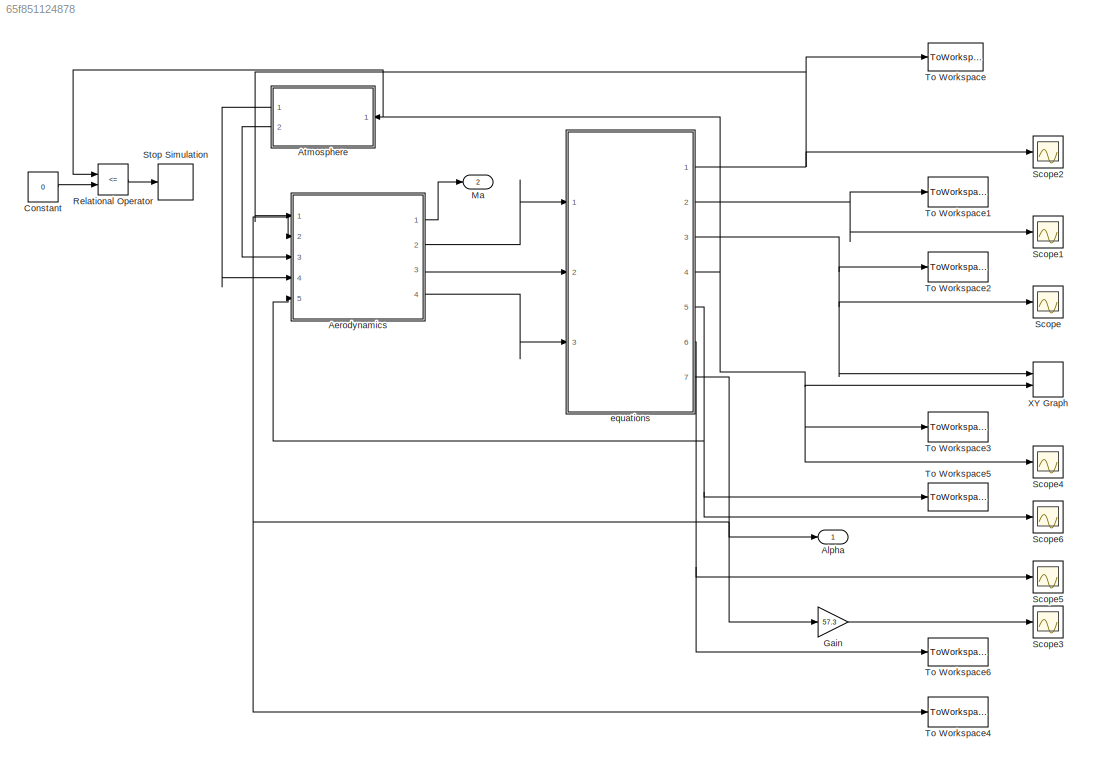
MODEL slx_65f851124878
KIND model
CONFIG AbsTol = auto
CONFIG EnableMultiTasking = off
CONFIG FixedStep = 0.001
CONFIG InitFcn = BeforeSim
CONFIG MaxStep = auto
CONFIG MinStep = auto
CONFIG RelTol = 1e-3
CONFIG SampleTimeConstraint = Unconstrained
CONFIG SolverName = ode4
CONFIG StartTime = 0.0
CONFIG StopTime = 90
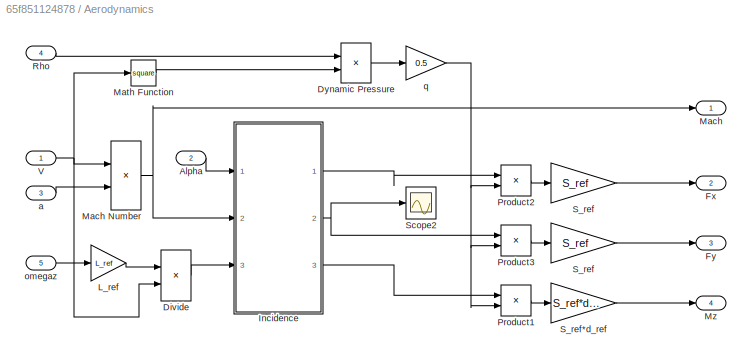
BLOCK [SubSystem] Aerodynamics
  Ports = [5, 4]
  RequestExecContextInheritance = off
BLOCK [Outport] Aerodynamics/ Mach
  InitialOutput = 0
  NameLocation = top
BLOCK [Inport] Aerodynamics/Alpha
  Port = 2
BLOCK [Product] Aerodynamics/Divide
  Inputs = */
  Ports = [2, 1]
BLOCK [Product] Aerodynamics/Dynamic Pressure
  InputSameDT = on
  OutDataTypeStr = Inherit: Same as first input
  Ports = [2, 1]
  SaturateOnIntegerOverflow = on
BLOCK [Outport] Aerodynamics/Fx
  InitialOutput = [0]
  Port = 2
BLOCK [Outport] Aerodynamics/Fy
  InitialOutput = 0
  Port = 3
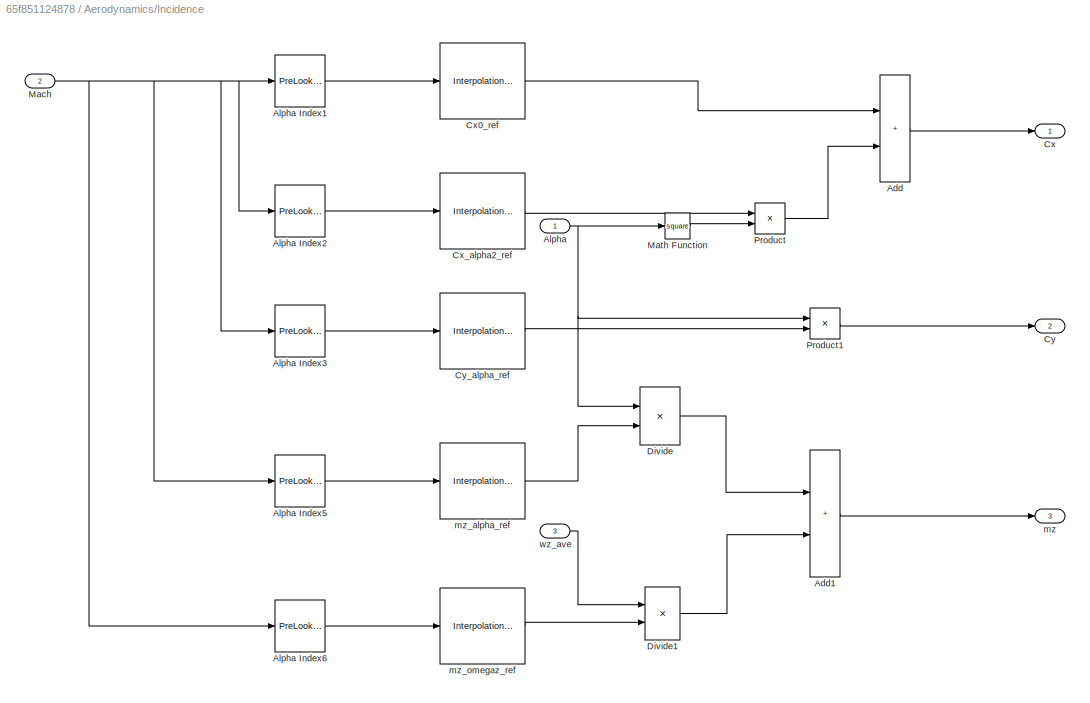
BLOCK [SubSystem] Aerodynamics/Incidence
  Ports = [3, 3]
  RequestExecContextInheritance = off
BLOCK [Sum] Aerodynamics/Incidence/Add
  IconShape = rectangular
  Ports = [2, 1]
BLOCK [Sum] Aerodynamics/Incidence/Add1
  IconShape = rectangular
  Ports = [2, 1]
BLOCK [Inport] Aerodynamics/Incidence/Alpha
BLOCK [Reference] Aerodynamics/Incidence/Alpha Index1  REF=simulink_need_slupdate/PreLookup
Index Search
  Ports = [1, 1]
  SourceBlock = simulink_need_slupdate/PreLookup\nIndex Search
  SourceProductBaseCode = SL
  SourceType = LookupIdxSearch
BLOCK [Reference] Aerodynamics/Incidence/Alpha Index2  REF=simulink_need_slupdate/PreLookup
Index Search
  Ports = [1, 1]
  SourceBlock = simulink_need_slupdate/PreLookup\nIndex Search
  SourceProductBaseCode = SL
  SourceType = LookupIdxSearch
BLOCK [Reference] Aerodynamics/Incidence/Alpha Index3  REF=simulink_need_slupdate/PreLookup
Index Search
  Ports = [1, 1]
  SourceBlock = simulink_need_slupdate/PreLookup\nIndex Search
  SourceProductBaseCode = SL
  SourceType = LookupIdxSearch
BLOCK [Reference] Aerodynamics/Incidence/Alpha Index5  REF=simulink_need_slupdate/PreLookup
Index Search
  Ports = [1, 1]
  SourceBlock = simulink_need_slupdate/PreLookup\nIndex Search
  SourceProductBaseCode = SL
  SourceType = LookupIdxSearch
BLOCK [Reference] Aerodynamics/Incidence/Alpha Index6  REF=simulink_need_slupdate/PreLookup
Index Search
  Ports = [1, 1]
  SourceBlock = simulink_need_slupdate/PreLookup\nIndex Search
  SourceProductBaseCode = SL
  SourceType = LookupIdxSearch
BLOCK [Outport] Aerodynamics/Incidence/Cx
  InitialOutput = 0
BLOCK [Reference] Aerodynamics/Incidence/Cx0_ref  REF=simulink_need_slupdate/Interpolation (n-D)
using PreLookup
  Ports = [1, 1]
  SourceBlock = simulink_need_slupdate/Interpolation (n-D)\nusing PreLookup
  SourceProductBaseCode = SL
  SourceType = LookupNDInterpIdx
BLOCK [Reference] Aerodynamics/Incidence/Cx_alpha2_ref  REF=simulink_need_slupdate/Interpolation (n-D)
using PreLookup
  Ports = [1, 1]
  SourceBlock = simulink_need_slupdate/Interpolation (n-D)\nusing PreLookup
  SourceProductBaseCode = SL
  SourceType = LookupNDInterpIdx
BLOCK [Outport] Aerodynamics/Incidence/Cy
  InitialOutput = 0
  Port = 2
BLOCK [Reference] Aerodynamics/Incidence/Cy_alpha_ref  REF=simulink_need_slupdate/Interpolation (n-D)
using PreLookup
  Ports = [1, 1]
  SourceBlock = simulink_need_slupdate/Interpolation (n-D)\nusing PreLookup
  SourceProductBaseCode = SL
  SourceType = LookupNDInterpIdx
BLOCK [Product] Aerodynamics/Incidence/Divide
  Ports = [2, 1]
BLOCK [Product] Aerodynamics/Incidence/Divide1
  Ports = [2, 1]
BLOCK [Inport] Aerodynamics/Incidence/Mach
  Port = 2
BLOCK [Math] Aerodynamics/Incidence/Math Function
  Operator = square
  Ports = [1, 1]
  SignedPower = on
BLOCK [Product] Aerodynamics/Incidence/Product
  Ports = [2, 1]
BLOCK [Product] Aerodynamics/Incidence/Product1
  Ports = [2, 1]
BLOCK [Outport] Aerodynamics/Incidence/mz
  Port = 3
BLOCK [Reference] Aerodynamics/Incidence/mz_alpha_ref  REF=simulink_need_slupdate/Interpolation (n-D)
using PreLookup
  Ports = [1, 1]
  SourceBlock = simulink_need_slupdate/Interpolation (n-D)\nusing PreLookup
  SourceProductBaseCode = SL
  SourceType = LookupNDInterpIdx
BLOCK [Reference] Aerodynamics/Incidence/mz_omegaz_ref  REF=simulink_need_slupdate/Interpolation (n-D)
using PreLookup
  Ports = [1, 1]
  SourceBlock = simulink_need_slupdate/Interpolation (n-D)\nusing PreLookup
  SourceProductBaseCode = SL
  SourceType = LookupNDInterpIdx
BLOCK [Inport] Aerodynamics/Incidence/wz_ave
  Port = 3
BLOCK [Gain] Aerodynamics/L_ref
  Gain = L_ref
  OutDataTypeStr = Inherit: Same as input
  ParamDataTypeStr = Inherit: Same as input
  SaturateOnIntegerOverflow = on
BLOCK [Product] Aerodynamics/Mach Number
  InputSameDT = on
  Inputs = */
  OutDataTypeStr = Inherit: Same as first input
  Ports = [2, 1]
  SaturateOnIntegerOverflow = on
BLOCK [Math] Aerodynamics/Math Function
  Operator = square
  Ports = [1, 1]
  SignedPower = on
BLOCK [Outport] Aerodynamics/Mz
  Port = 4
BLOCK [Product] Aerodynamics/Product1
  InputSameDT = on
  OutDataTypeStr = Inherit: Same as first input
  Ports = [2, 1]
  SaturateOnIntegerOverflow = on
BLOCK [Product] Aerodynamics/Product2
  InputSameDT = on
  OutDataTypeStr = Inherit: Same as first input
  Ports = [2, 1]
  SaturateOnIntegerOverflow = on
BLOCK [Product] Aerodynamics/Product3
  InputSameDT = on
  OutDataTypeStr = Inherit: Same as first input
  Ports = [2, 1]
  SaturateOnIntegerOverflow = on
BLOCK [Inport] Aerodynamics/Rho
  Port = 4
BLOCK [Gain] Aerodynamics/S_ref
  Gain = S_ref
  OutDataTypeStr = Inherit: Same as input
  ParamDataTypeStr = Inherit: Same as input
  SaturateOnIntegerOverflow = on
BLOCK [Gain] Aerodynamics/S_ref 
  Gain = S_ref
  OutDataTypeStr = Inherit: Same as input
  ParamDataTypeStr = Inherit: Same as input
  SaturateOnIntegerOverflow = on
BLOCK [Gain] Aerodynamics/S_ref*d_ref
  Gain = S_ref*d_ref
  OutDataTypeStr = Inherit: Same as input
  ParamDataTypeStr = Inherit: Same as input
  SaturateOnIntegerOverflow = on
BLOCK [Scope] Aerodynamics/Scope2
  Floating = off
  NumInputPorts = 1
  Ports = [1]
  ScopeSpecificationString = C++SS(StrPVP('Open','off'),StrPVP('TimeRange','auto'),StrPVP('TickLabels','OneTimeTick'),StrPVP('ShowLegends','off'),StrPVP('LimitDataPoints','off'),StrPVP('MaxDataPoints','5000'),StrPVP('SaveToWorkspace','off'),StrPVP('SaveName','ScopeData2'),StrPVP('YMin','-1.62944'),StrPVP('YMax','4.48792'),StrPVP('BlockParamSampleInput','off'),StrPVP('BlockParamSampleTime','-1'),StrPVP('ZoomMode','on'),StrPVP(...<+632ch>
BLOCK [Inport] Aerodynamics/V
BLOCK [Inport] Aerodynamics/a
  Port = 3
BLOCK [Inport] Aerodynamics/omegaz
  Port = 5
BLOCK [Gain] Aerodynamics/q
  Gain = 0.5
  OutDataTypeStr = Inherit: Same as input
  ParamDataTypeStr = Inherit: Same as input
  SaturateOnIntegerOverflow = on
BLOCK [Outport] Alpha
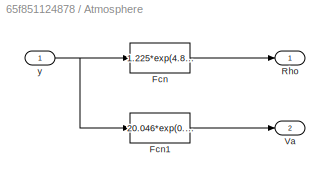
BLOCK [SubSystem] Atmosphere
  Ports = [1, 2]
  RequestExecContextInheritance = off
BLOCK [Fcn] Atmosphere/Fcn
  Expr = 1.225*exp(4.83*log(1.0-2.0323e-5*u(1)))
BLOCK [Fcn] Atmosphere/Fcn1
  Expr = 20.046*exp(0.5*log(288.34-5.86e-3*u(1)))
BLOCK [Outport] Atmosphere/Rho
BLOCK [Outport] Atmosphere/Va
  Port = 2
BLOCK [Inport] Atmosphere/y
BLOCK [Constant] Constant
  Value = 0
BLOCK [Gain] Gain
  Gain = 57.3
BLOCK [Outport] Ma
  Port = 2
BLOCK [RelationalOperator] Relational Operator
  InputSameDT = off
  Operator = <=
  OutDataTypeStr = boolean
  Ports = [2, 1]
  RndMeth = Simplest
BLOCK [Scope] Scope
  Floating = off
  NumInputPorts = 1
  Ports = [1]
  ScopeSpecificationString = Simulink.scopes.TimeScopeBlockCfg('CurrentConfiguration', extmgr.ConfigurationSet(extmgr.Configuration('Core','General UI',true),extmgr.Configuration('Core','Source UI',true),extmgr.Configuration('Sources','WiredSimulink',true,'DataLoggingVariableName','ScopeData1'),extmgr.Configuration('Visuals','Time Domain',true,'SerializedDisplays',{struct('MinYLimReal','-609.05232','MaxYLimReal','5481.47092',...<+1377ch>
BLOCK [Scope] Scope1
  Floating = off
  NumInputPorts = 1
  Ports = [1]
  ScopeSpecificationString = Simulink.scopes.TimeScopeBlockCfg('CurrentConfiguration', extmgr.ConfigurationSet(extmgr.Configuration('Core','General UI',true),extmgr.Configuration('Core','Source UI',true),extmgr.Configuration('Sources','WiredSimulink',true,'DataLoggingVariableName','ScopeData2'),extmgr.Configuration('Visuals','Time Domain',true,'SerializedDisplays',{struct('MinYLimReal','-1.00535','MaxYLimReal','0.11171','YLab...<+1359ch>
BLOCK [Scope] Scope2
  Floating = off
  NumInputPorts = 1
  Ports = [1]
  ScopeSpecificationString = Simulink.scopes.TimeScopeBlockCfg('CurrentConfiguration', extmgr.ConfigurationSet(extmgr.Configuration('Core','General UI',true),extmgr.Configuration('Core','Source UI',true),extmgr.Configuration('Sources','WiredSimulink',true,'DataLoggingVariableName','ScopeData3'),extmgr.Configuration('Visuals','Time Domain',true,'SerializedDisplays',{struct('MinYLimReal','124.70604','MaxYLimReal','597.25488','Y...<+1384ch>
BLOCK [Scope] Scope3
  Floating = off
  NumInputPorts = 1
  Ports = [1]
  ScopeSpecificationString = Simulink.scopes.TimeScopeBlockCfg('CurrentConfiguration', extmgr.ConfigurationSet(extmgr.Configuration('Core','General UI',true,'FigureColor',[0.156862745098039 0.156862745098039 0.156862745098039]),extmgr.Configuration('Core','Source UI',true),extmgr.Configuration('Sources','WiredSimulink',true,'DataLoggingVariableName','ScopeData4','DataLoggingSaveFormat','StructureWithTime','DataLoggingDecimati...<+2755ch>
BLOCK [Scope] Scope4
  Floating = off
  NumInputPorts = 1
  Ports = [1]
  ScopeSpecificationString = Simulink.scopes.TimeScopeBlockCfg('CurrentConfiguration', extmgr.ConfigurationSet(extmgr.Configuration('Core','General UI',true,'FigureColor',[0.156862745098039 0.156862745098039 0.156862745098039]),extmgr.Configuration('Core','Source UI',true),extmgr.Configuration('Sources','WiredSimulink',true,'DataLoggingVariableName','ScopeData5','DataLoggingSaveFormat','StructureWithTime','DataLoggingDecimati...<+2823ch>
BLOCK [Scope] Scope5
  Floating = off
  NumInputPorts = 1
  Ports = [1]
  ScopeSpecificationString = Simulink.scopes.TimeScopeBlockCfg('CurrentConfiguration', extmgr.ConfigurationSet(extmgr.Configuration('Core','General UI',true),extmgr.Configuration('Core','Source UI',true),extmgr.Configuration('Sources','WiredSimulink',true,'DataLoggingVariableName','ScopeData1'),extmgr.Configuration('Visuals','Time Domain',true,'SerializedDisplays',{struct('MinYLimReal','-1.30194','MaxYLimReal','1.11429','YLab...<+1370ch>
BLOCK [Scope] Scope6
  Floating = off
  NumInputPorts = 1
  Ports = [1]
  ScopeSpecificationString = Simulink.scopes.TimeScopeBlockCfg('CurrentConfiguration', extmgr.ConfigurationSet(extmgr.Configuration('Core','General UI',true),extmgr.Configuration('Core','Source UI',true),extmgr.Configuration('Sources','WiredSimulink',true,'DataLoggingVariableName','ScopeData2'),extmgr.Configuration('Visuals','Time Domain',true),extmgr.Configuration('Tools','Plot Navigation',true),extmgr.Configuration('Tools',...<+40ch>
BLOCK [Stop] Stop Simulation
BLOCK [ToWorkspace] To Workspace
  FixptAsFi = on
  MaxDataPoints = inf
  Ports = [1]
  SampleTime = -1
  SaveFormat = Timeseries
  VariableName = v
BLOCK [ToWorkspace] To Workspace1
  FixptAsFi = on
  MaxDataPoints = inf
  Ports = [1]
  SampleTime = -1
  SaveFormat = Timeseries
  VariableName = theta
BLOCK [ToWorkspace] To Workspace2
  FixptAsFi = on
  MaxDataPoints = inf
  Ports = [1]
  SampleTime = -1
  SaveFormat = Timeseries
  VariableName = x
BLOCK [ToWorkspace] To Workspace3
  FixptAsFi = on
  MaxDataPoints = inf
  Ports = [1]
  SampleTime = -1
  SaveFormat = Timeseries
  VariableName = y
BLOCK [ToWorkspace] To Workspace4
  FixptAsFi = on
  MaxDataPoints = inf
  Ports = [1]
  SampleTime = -1
  SaveFormat = Timeseries
  VariableName = alpha
BLOCK [ToWorkspace] To Workspace5
  FixptAsFi = on
  MaxDataPoints = inf
  Ports = [1]
  SampleTime = -1
  SaveFormat = Timeseries
  VariableName = omegaz
BLOCK [ToWorkspace] To Workspace6
  FixptAsFi = on
  MaxDataPoints = inf
  Ports = [1]
  SampleTime = -1
  SaveFormat = Timeseries
  VariableName = theta_dot
BLOCK [Record] XY Graph
  CompatibilityTag = XY
  FileSettingsInternal = {"entries":[{"content":{"excelSettings":{"content":{},"type":"Streamout.ExcelSettings"}},"type":"Streamout.FileSettingStorage","uuid":"35f0fb69-fa2a-4ecf-9b04-103c80e78a0d"}],"packageUris":["http://schema.mathworks.com/mf0/streamout_blocks/R2020a"],"version":"1.0"}
  Layout = [1 1]
  Ports = [2]
  SignalsInternal = {"entries":[{"content":{"signals":[{"content":{"blockPath":["program_flight/XY Graph"],"channel":[],"dimensions":[1],"domain":"program_flight/XY Graph","lineColor":"#a2142f","plots":[1],"port":1,"sid":[""],"signalID":9873,"signalName":"equations:3"},"type":"RecordBlkView.Signal","uuid":"9f90cb3c-1b18-4322-8165-289bff55505e"},{"content":{"blockPath":["program_flight/XY Graph"],"channel":[],"dimensi...<+395ch>
  VisualizationBindings = {"xyplotplugin":{"info":[{"series":[{"bindingParametersList":[{"parameter":"X-Axis","signalID":9873,"signalName":"equations:3"},{"parameter":"Y-Axis","signalID":9877,"signalName":"equations:4"}],"seriesID":37299}],"subplotID":1}]}}
  st = -1
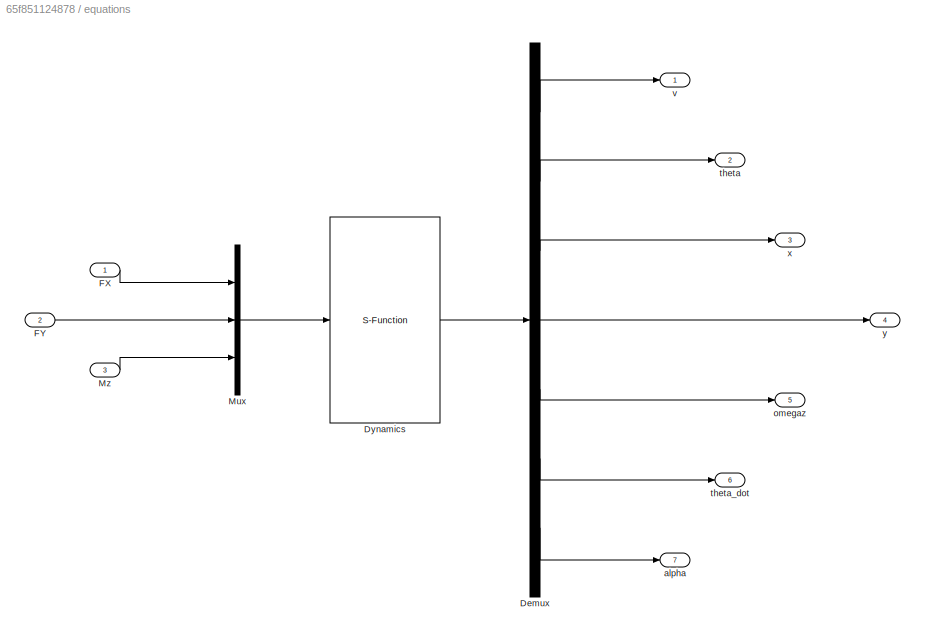
BLOCK [SubSystem] equations
  Ports = [3, 7]
  RequestExecContextInheritance = off
BLOCK [Demux] equations/Demux
  Outputs = 7
  Ports = [1, 7]
BLOCK [S-Function] equations/Dynamics
  EnableBusSupport = off
  FunctionName = ProgramDynamics
  Ports = [1, 1]
  SFcnIsStateOwnerBlock = off
  SFunctionDeploymentMode = off
BLOCK [Inport] equations/FX
BLOCK [Inport] equations/FY
  Port = 2
BLOCK [Mux] equations/Mux
  DisplayOption = bar
  Inputs = 3
  Ports = [3, 1]
BLOCK [Inport] equations/Mz
  Port = 3
BLOCK [Outport] equations/alpha
  Port = 7
BLOCK [Outport] equations/omegaz
  Port = 5
BLOCK [Outport] equations/theta
  Port = 2
BLOCK [Outport] equations/theta_dot
  Port = 6
BLOCK [Outport] equations/v
BLOCK [Outport] equations/x
  Port = 3
BLOCK [Outport] equations/y
  Port = 4
LINE Aerodynamics/Alpha:1 -> Aerodynamics/Incidence:1
LINE Aerodynamics/Divide:1 -> Aerodynamics/Incidence:3
LINE Aerodynamics/Dynamic Pressure:1 -> Aerodynamics/q:1
LINE Aerodynamics/Incidence/Add1:1 -> Aerodynamics/Incidence/mz:1
LINE Aerodynamics/Incidence/Add:1 -> Aerodynamics/Incidence/Cx:1
LINE Aerodynamics/Incidence/Alpha Index1:1 -> Aerodynamics/Incidence/Cx0_ref:1
LINE Aerodynamics/Incidence/Alpha Index2:1 -> Aerodynamics/Incidence/Cx_alpha2_ref:1
LINE Aerodynamics/Incidence/Alpha Index3:1 -> Aerodynamics/Incidence/Cy_alpha_ref:1
LINE Aerodynamics/Incidence/Alpha Index5:1 -> Aerodynamics/Incidence/mz_alpha_ref:1
LINE Aerodynamics/Incidence/Alpha Index6:1 -> Aerodynamics/Incidence/mz_omegaz_ref:1
NET Aerodynamics/Incidence/Alpha:1 -> Aerodynamics/Incidence/Divide:1, Aerodynamics/Incidence/Math Function:1, Aerodynamics/Incidence/Product1:1
LINE Aerodynamics/Incidence/Cx0_ref:1 -> Aerodynamics/Incidence/Add:1
LINE Aerodynamics/Incidence/Cx_alpha2_ref:1 -> Aerodynamics/Incidence/Product:1
LINE Aerodynamics/Incidence/Cy_alpha_ref:1 -> Aerodynamics/Incidence/Product1:2
LINE Aerodynamics/Incidence/Divide1:1 -> Aerodynamics/Incidence/Add1:2
LINE Aerodynamics/Incidence/Divide:1 -> Aerodynamics/Incidence/Add1:1
NET Aerodynamics/Incidence/Mach:1 -> Aerodynamics/Incidence/Alpha Index1:1, Aerodynamics/Incidence/Alpha Index2:1, Aerodynamics/Incidence/Alpha Index3:1, Aerodynamics/Incidence/Alpha Index5:1, Aerodynamics/Incidence/Alpha Index6:1
LINE Aerodynamics/Incidence/Math Function:1 -> Aerodynamics/Incidence/Product:2
LINE Aerodynamics/Incidence/Product1:1 -> Aerodynamics/Incidence/Cy:1
LINE Aerodynamics/Incidence/Product:1 -> Aerodynamics/Incidence/Add:2
LINE Aerodynamics/Incidence/mz_alpha_ref:1 -> Aerodynamics/Incidence/Divide:2
LINE Aerodynamics/Incidence/mz_omegaz_ref:1 -> Aerodynamics/Incidence/Divide1:2
LINE Aerodynamics/Incidence/wz_ave:1 -> Aerodynamics/Incidence/Divide1:1
LINE Aerodynamics/Incidence:1 -> Aerodynamics/Product2:1
NET Aerodynamics/Incidence:2 -> Aerodynamics/Product3:1, Aerodynamics/Scope2:1
LINE Aerodynamics/Incidence:3 -> Aerodynamics/Product1:1
LINE Aerodynamics/L_ref:1 -> Aerodynamics/Divide:1
NET Aerodynamics/Mach Number:1 -> Aerodynamics/ Mach:1, Aerodynamics/Incidence:2
LINE Aerodynamics/Math Function:1 -> Aerodynamics/Dynamic Pressure:2
LINE Aerodynamics/Product1:1 -> Aerodynamics/S_ref*d_ref:1
LINE Aerodynamics/Product2:1 -> Aerodynamics/S_ref:1
LINE Aerodynamics/Product3:1 -> Aerodynamics/S_ref :1
LINE Aerodynamics/Rho:1 -> Aerodynamics/Dynamic Pressure:1
LINE Aerodynamics/S_ref :1 -> Aerodynamics/Fy:1
LINE Aerodynamics/S_ref*d_ref:1 -> Aerodynamics/Mz:1
LINE Aerodynamics/S_ref:1 -> Aerodynamics/Fx:1
NET Aerodynamics/V:1 -> Aerodynamics/Divide:2, Aerodynamics/Mach Number:1, Aerodynamics/Math Function:1
LINE Aerodynamics/a:1 -> Aerodynamics/Mach Number:2
LINE Aerodynamics/omegaz:1 -> Aerodynamics/L_ref:1
NET Aerodynamics/q:1 -> Aerodynamics/Product1:2, Aerodynamics/Product2:2, Aerodynamics/Product3:2
LINE Aerodynamics:1 -> Ma:1
LINE Aerodynamics:2 -> equations:1
LINE Aerodynamics:3 -> equations:2
LINE Aerodynamics:4 -> equations:3
LINE Atmosphere/Fcn1:1 -> Atmosphere/Va:1
LINE Atmosphere/Fcn:1 -> Atmosphere/Rho:1
NET Atmosphere/y:1 -> Atmosphere/Fcn1:1, Atmosphere/Fcn:1
LINE Atmosphere:1 -> Aerodynamics:4
LINE Atmosphere:2 -> Aerodynamics:3
LINE Constant:1 -> Relational Operator:2
LINE Gain:1 -> Scope3:1
LINE Relational Operator:1 -> Stop Simulation:1
LINE equations/Demux:1 -> equations/v:1
LINE equations/Demux:2 -> equations/theta:1
LINE equations/Demux:3 -> equations/x:1
LINE equations/Demux:4 -> equations/y:1
LINE equations/Demux:5 -> equations/omegaz:1
LINE equations/Demux:6 -> equations/theta_dot:1
LINE equations/Demux:7 -> equations/alpha:1
LINE equations/Dynamics:1 -> equations/Demux:1
LINE equations/FX:1 -> equations/Mux:1
LINE equations/FY:1 -> equations/Mux:2
LINE equations/Mux:1 -> equations/Dynamics:1
LINE equations/Mz:1 -> equations/Mux:3
NET equations:1 -> Aerodynamics:1, Scope2:1, To Workspace:1
NET equations:2 -> Scope1:1, To Workspace1:1
NET equations:3 -> Scope:1, To Workspace2:1, XY Graph:1
NET equations:4 -> Atmosphere:1, Relational Operator:1, Scope4:1, To Workspace3:1, XY Graph:2
NET equations:5 -> Aerodynamics:5, Scope6:1, To Workspace5:1
NET equations:6 -> Scope5:1, To Workspace6:1
NET equations:7 -> Aerodynamics:2, Alpha:1, Gain:1, To Workspace4:1
note: NET lines group one-source signal fan-out (src -> all destinations, sorted); 1:1 wires keep LINE
